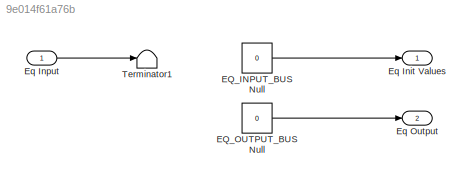
MODEL slx_9e014f61a76b
KIND model
BLOCK [Constant] EQ_INPUT_BUS Null
  OutDataTypeStr = Bus: EQ_INPUT_BUS
  SampleTime = -1
  Value = 0
BLOCK [Constant] EQ_OUTPUT_BUS Null
  OutDataTypeStr = Bus: EQ_OUTPUT_BUS
  SampleTime = -1
  Value = 0
BLOCK [Outport] Eq Init Values
  BusOutputAsStruct = on
  IconDisplay = Port number
  OutDataTypeStr = Bus: EQ_INPUT_BUS
BLOCK [Inport] Eq Input
  BusOutputAsStruct = on
  IconDisplay = Port number
  OutDataTypeStr = Bus: EQ_INPUT_BUS
BLOCK [Outport] Eq Output
  BusOutputAsStruct = on
  IconDisplay = Port number
  OutDataTypeStr = Bus: EQ_OUTPUT_BUS
  Port = 2
BLOCK [Terminator] Terminator1
LINE EQ_INPUT_BUS Null:1 -> Eq Init Values:1
LINE EQ_OUTPUT_BUS Null:1 -> Eq Output:1
LINE Eq Input:1 -> Terminator1:1
